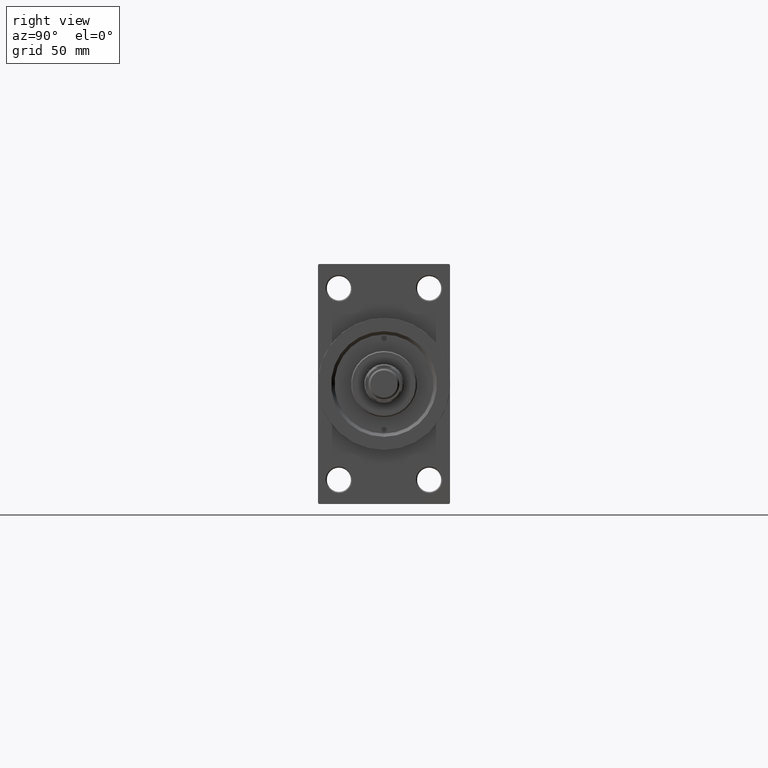
[diagram: clean part render]
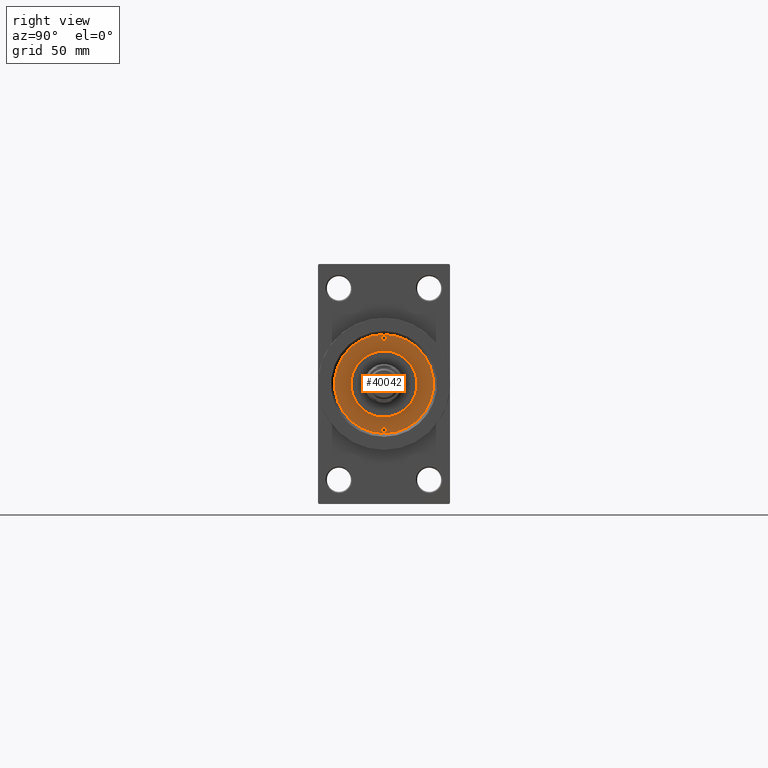
[diagram: same view with one face highlighted and labeled with its STEP entity id]
A machine part, right view. The second image highlights one B-rep face of the part: STEP entity #40042.
In plain terms, the highlighted planar face has unit normal (1, -0, -0).
Its self-contained STEP definition (entity closure, byte-faithful):
#52 = AXIS2_PLACEMENT_3D ( 'NONE', #5876, #39575, #28213 ) ;
#1594 = DIRECTION ( 'NONE',  ( 1.000000000000000000, 0.000000000000000000, 0.000000000000000000 ) ) ;
#1620 = AXIS2_PLACEMENT_3D ( 'NONE', #42465, #25060, #27714 ) ;
#1961 = FACE_BOUND ( 'NONE', #33587, .T. ) ;
#3012 = VERTEX_POINT ( 'NONE', #13655 ) ;
#3402 = CARTESIAN_POINT ( 'NONE',  ( 22.00000000000000000, 0.000000000000000000, 43.25999999999999801 ) ) ;
#3776 = ORIENTED_EDGE ( 'NONE', *, *, #11199, .F. ) ;
#3850 = AXIS2_PLACEMENT_3D ( 'NONE', #14692, #40131, #7848 ) ;
#4100 = AXIS2_PLACEMENT_3D ( 'NONE', #18032, #29875, #14624 ) ;
#4107 = DIRECTION ( 'NONE',  ( 1.000000000000000000, 0.000000000000000000, 0.000000000000000000 ) ) ;
#4663 = EDGE_CURVE ( 'NONE', #41207, #3012, #43971, .T. ) ;
#5165 = DIRECTION ( 'NONE',  ( 1.000000000000000000, 0.000000000000000000, 0.000000000000000000 ) ) ;
#5601 = FACE_BOUND ( 'NONE', #47627, .T. ) ;
#5614 = DIRECTION ( 'NONE',  ( 1.000000000000000000, 0.000000000000000000, 0.000000000000000000 ) ) ;
#5876 = CARTESIAN_POINT ( 'NONE',  ( -20.75000000000000000, 0.000000000000000000, 43.25999999999999801 ) ) ;
#6921 = CARTESIAN_POINT ( 'NONE',  ( -22.00000000000000000, 1.530808498934188612E-16, 43.25999999999999801 ) ) ;
#7289 = DIRECTION ( 'NONE',  ( -0.000000000000000000, -0.000000000000000000, 1.000000000000000000 ) ) ;
#7848 = DIRECTION ( 'NONE',  ( 1.000000000000000000, 0.000000000000000000, 0.000000000000000000 ) ) ;
#9493 = DIRECTION ( 'NONE',  ( -0.000000000000000000, -0.000000000000000000, 1.000000000000000000 ) ) ;
#9731 = ORIENTED_EDGE ( 'NONE', *, *, #30085, .F. ) ;
#11155 = EDGE_CURVE ( 'NONE', #43584, #14357, #44208, .T. ) ;
#11199 = EDGE_CURVE ( 'NONE', #22439, #30051, #11682, .T. ) ;
#11366 = VERTEX_POINT ( 'NONE', #12130 ) ;
#11682 = CIRCLE ( 'NONE', #52, 1.249999999999997558 ) ;
#11792 = AXIS2_PLACEMENT_3D ( 'NONE', #45391, #16596, #5165 ) ;
#12130 = CARTESIAN_POINT ( 'NONE',  ( 19.50000000000000355, 1.530808498934188612E-16, 43.25999999999999801 ) ) ;
#12519 = AXIS2_PLACEMENT_3D ( 'NONE', #33473, #7289, #4107 ) ;
#12529 = VERTEX_POINT ( 'NONE', #3402 ) ;
#13122 = FACE_BOUND ( 'NONE', #17062, .T. ) ;
#13374 = DIRECTION ( 'NONE',  ( 0.000000000000000000, 0.000000000000000000, 1.000000000000000000 ) ) ;
#13377 = CIRCLE ( 'NONE', #11792, 22.50000000000000355 ) ;
#13655 = CARTESIAN_POINT ( 'NONE',  ( -15.00000000000000000, 0.000000000000000000, 43.25999999999999801 ) ) ;
#14357 = VERTEX_POINT ( 'NONE', #29895 ) ;
#14624 = DIRECTION ( 'NONE',  ( 1.000000000000000000, 0.000000000000000000, 0.000000000000000000 ) ) ;
#14692 = CARTESIAN_POINT ( 'NONE',  ( 20.75000000000000000, 0.000000000000000000, 43.25999999999999801 ) ) ;
#14854 = CIRCLE ( 'NONE', #12519, 1.249999999999997558 ) ;
#16596 = DIRECTION ( 'NONE',  ( 0.000000000000000000, 0.000000000000000000, 1.000000000000000000 ) ) ;
#16655 = EDGE_CURVE ( 'NONE', #3012, #41207, #25062, .T. ) ;
#16885 = CARTESIAN_POINT ( 'NONE',  ( 0.000000000000000000, 0.000000000000000000, 43.25999999999999801 ) ) ;
#17062 = EDGE_LOOP ( 'NONE', ( #22392, #9731 ) ) ;
#17360 = EDGE_CURVE ( 'NONE', #14357, #43584, #13377, .T. ) ;
#18032 = CARTESIAN_POINT ( 'NONE',  ( 0.000000000000000000, 0.000000000000000000, 43.25999999999999801 ) ) ;
#18436 = ORIENTED_EDGE ( 'NONE', *, *, #11155, .T. ) ;
#18467 = ORIENTED_EDGE ( 'NONE', *, *, #4663, .F. ) ;
#18590 = CIRCLE ( 'NONE', #3850, 1.249999999999997558 ) ;
#19619 = ORIENTED_EDGE ( 'NONE', *, *, #37556, .F. ) ;
#20098 = ORIENTED_EDGE ( 'NONE', *, *, #16655, .F. ) ;
#22392 = ORIENTED_EDGE ( 'NONE', *, *, #37349, .F. ) ;
#22439 = VERTEX_POINT ( 'NONE', #25514 ) ;
#23096 = AXIS2_PLACEMENT_3D ( 'NONE', #16885, #35303, #1594 ) ;
#24529 = CARTESIAN_POINT ( 'NONE',  ( 0.000000000000000000, 0.000000000000000000, 43.25999999999999801 ) ) ;
#25060 = DIRECTION ( 'NONE',  ( 0.000000000000000000, 0.000000000000000000, 1.000000000000000000 ) ) ;
#25062 = CIRCLE ( 'NONE', #4100, 15.00000000000000000 ) ;
#25514 = CARTESIAN_POINT ( 'NONE',  ( -19.50000000000000355, 0.000000000000000000, 43.25999999999999801 ) ) ;
#27714 = DIRECTION ( 'NONE',  ( 1.000000000000000000, 0.000000000000000000, 0.000000000000000000 ) ) ;
#28213 = DIRECTION ( 'NONE',  ( 1.000000000000000000, 0.000000000000000000, 0.000000000000000000 ) ) ;
#29875 = DIRECTION ( 'NONE',  ( 0.000000000000000000, 0.000000000000000000, 1.000000000000000000 ) ) ;
#29895 = CARTESIAN_POINT ( 'NONE',  ( 22.50000000000000355, 2.755455298081545172E-15, 43.25999999999999801 ) ) ;
#30051 = VERTEX_POINT ( 'NONE', #6921 ) ;
#30085 = EDGE_CURVE ( 'NONE', #11366, #12529, #18590, .T. ) ;
#31793 = CARTESIAN_POINT ( 'NONE',  ( 15.00000000000000000, 1.836970198721029589E-15, 43.25999999999999801 ) ) ;
#32530 = DIRECTION ( 'NONE',  ( 1.000000000000000000, 0.000000000000000000, -0.000000000000000000 ) ) ;
#32657 = CIRCLE ( 'NONE', #34181, 1.249999999999997558 ) ;
#33473 = CARTESIAN_POINT ( 'NONE',  ( -20.75000000000000000, 0.000000000000000000, 43.25999999999999801 ) ) ;
#33587 = EDGE_LOOP ( 'NONE', ( #3776, #19619 ) ) ;
#34181 = AXIS2_PLACEMENT_3D ( 'NONE', #45832, #9493, #5614 ) ;
#35303 = DIRECTION ( 'NONE',  ( 0.000000000000000000, 0.000000000000000000, 1.000000000000000000 ) ) ;
#37349 = EDGE_CURVE ( 'NONE', #12529, #11366, #32657, .T. ) ;
#37556 = EDGE_CURVE ( 'NONE', #30051, #22439, #14854, .T. ) ;
#38167 = AXIS2_PLACEMENT_3D ( 'NONE', #24529, #13374, #32530 ) ;
#38814 = PLANE ( 'NONE',  #38167 ) ;
#39575 = DIRECTION ( 'NONE',  ( -0.000000000000000000, -0.000000000000000000, 1.000000000000000000 ) ) ;
#40042 = ADVANCED_FACE ( 'NONE', ( #1961, #13122, #5601, #46791 ), #38814, .T. ) ;
#40131 = DIRECTION ( 'NONE',  ( -0.000000000000000000, -0.000000000000000000, 1.000000000000000000 ) ) ;
#41207 = VERTEX_POINT ( 'NONE', #31793 ) ;
#41789 = EDGE_LOOP ( 'NONE', ( #18436, #46736 ) ) ;
#42465 = CARTESIAN_POINT ( 'NONE',  ( 0.000000000000000000, 0.000000000000000000, 43.25999999999999801 ) ) ;
#43584 = VERTEX_POINT ( 'NONE', #47239 ) ;
#43971 = CIRCLE ( 'NONE', #23096, 15.00000000000000000 ) ;
#44208 = CIRCLE ( 'NONE', #1620, 22.50000000000000355 ) ;
#45391 = CARTESIAN_POINT ( 'NONE',  ( 0.000000000000000000, 0.000000000000000000, 43.25999999999999801 ) ) ;
#45832 = CARTESIAN_POINT ( 'NONE',  ( 20.75000000000000000, 0.000000000000000000, 43.25999999999999801 ) ) ;
#46736 = ORIENTED_EDGE ( 'NONE', *, *, #17360, .T. ) ;
#46791 = FACE_OUTER_BOUND ( 'NONE', #41789, .T. ) ;
#47239 = CARTESIAN_POINT ( 'NONE',  ( -22.50000000000000355, 0.000000000000000000, 43.25999999999999801 ) ) ;
#47627 = EDGE_LOOP ( 'NONE', ( #20098, #18467 ) ) ;